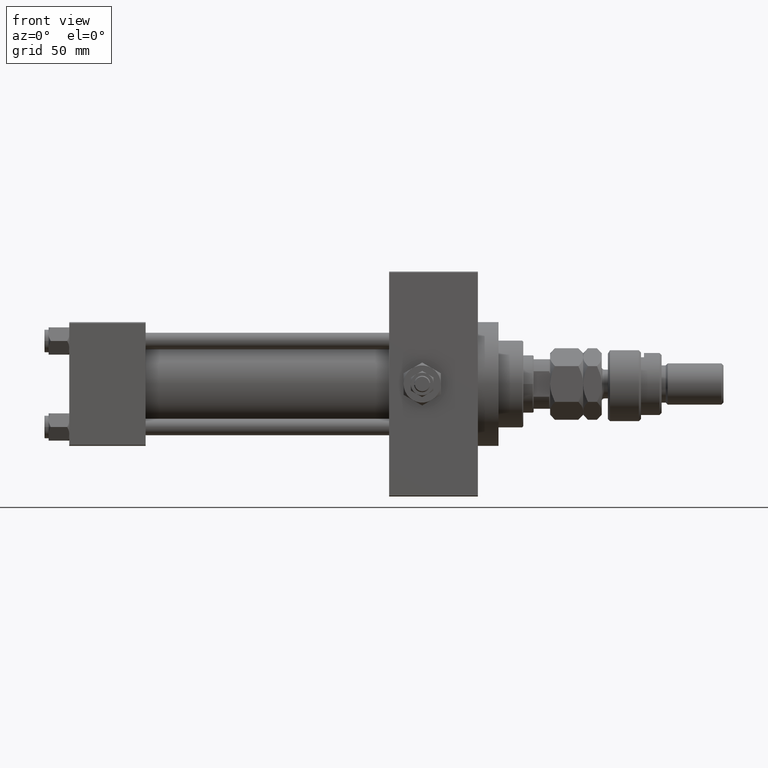
[diagram: clean part render]
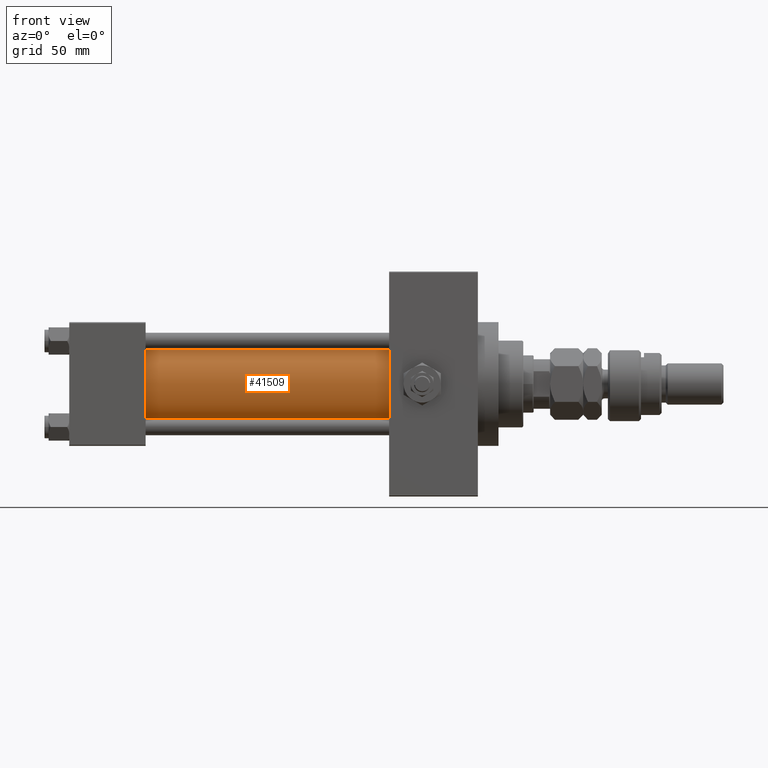
[diagram: same view with one face highlighted and labeled with its STEP entity id]
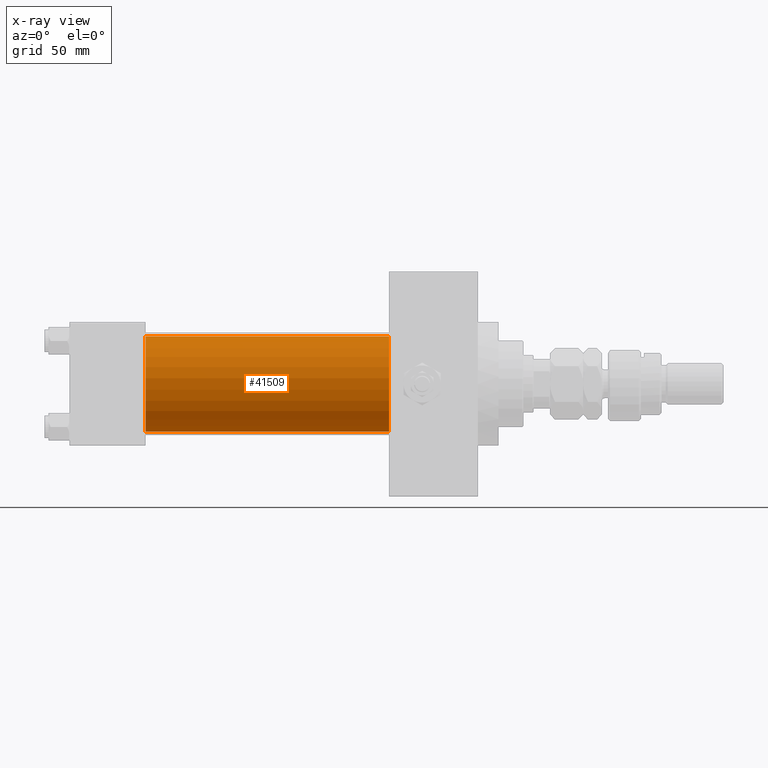
[diagram: x-ray of the same camera — body ghosted, the highlighted face saturated]
A machine part, front view. The second image highlights one B-rep face of the part: STEP entity #41509.
The next image is the same camera in x-ray: the body ghosted, the highlighted face saturated — about 0% of this face is hidden behind the body in this view.
In plain terms, the highlighted cylindrical surface (partial cylindrical patch) has radius 23 mm, axis along (-1, -0, -0).
Its self-contained STEP definition (entity closure, byte-faithful):
#98 = CARTESIAN_POINT ( 'NONE',  ( 155.0000000000000000, 2.146024240737016609E-16, -23.00000000000000000 ) ) ;
#887 = ORIENTED_EDGE ( 'NONE', *, *, #43279, .F. ) ;
#1517 = DIRECTION ( 'NONE',  ( -1.000000000000000000, -0.000000000000000000, -0.000000000000000000 ) ) ;
#2030 = CYLINDRICAL_SURFACE ( 'NONE', #33888, 23.00000000000000000 ) ;
#3054 = CARTESIAN_POINT ( 'NONE',  ( 155.0000000000000000, -2.602085213965210642E-15, 0.000000000000000000 ) ) ;
#3442 = CARTESIAN_POINT ( 'NONE',  ( 155.0000000000000000, -2.602085213965210642E-15, 0.000000000000000000 ) ) ;
#3690 = DIRECTION ( 'NONE',  ( 0.000000000000000000, 0.000000000000000000, -1.000000000000000000 ) ) ;
#5189 = VERTEX_POINT ( 'NONE', #98 ) ;
#6702 = ORIENTED_EDGE ( 'NONE', *, *, #36037, .F. ) ;
#15310 = LINE ( 'NONE', #46596, #28854 ) ;
#16015 = EDGE_LOOP ( 'NONE', ( #887, #6702, #18909, #29895 ) ) ;
#17928 = DIRECTION ( 'NONE',  ( -1.000000000000000000, -0.000000000000000000, -0.000000000000000000 ) ) ;
#18909 = ORIENTED_EDGE ( 'NONE', *, *, #20755, .T. ) ;
#20755 = EDGE_CURVE ( 'NONE', #38773, #51149, #32777, .T. ) ;
#23119 = DIRECTION ( 'NONE',  ( 0.000000000000000000, 0.000000000000000000, 1.000000000000000000 ) ) ;
#28854 = VECTOR ( 'NONE', #41213, 1000.000000000000000 ) ;
#29895 = ORIENTED_EDGE ( 'NONE', *, *, #32033, .T. ) ;
#32033 = EDGE_CURVE ( 'NONE', #51149, #45549, #47226, .T. ) ;
#32777 = LINE ( 'NONE', #48949, #37756 ) ;
#33888 = AXIS2_PLACEMENT_3D ( 'NONE', #3054, #17928, #23119 ) ;
#34586 = FACE_OUTER_BOUND ( 'NONE', #16015, .T. ) ;
#34659 = CARTESIAN_POINT ( 'NONE',  ( 37.00000000000000711, 2.146024240737016609E-16, -23.00000000000000000 ) ) ;
#35941 = DIRECTION ( 'NONE',  ( 0.000000000000000000, 0.000000000000000000, 1.000000000000000000 ) ) ;
#36037 = EDGE_CURVE ( 'NONE', #38773, #5189, #38677, .T. ) ;
#37756 = VECTOR ( 'NONE', #1517, 1000.000000000000000 ) ;
#38081 = CARTESIAN_POINT ( 'NONE',  ( 155.0000000000000000, -2.602085213965210642E-15, 23.00000000000000000 ) ) ;
#38677 = CIRCLE ( 'NONE', #47010, 23.00000000000000000 ) ;
#38773 = VERTEX_POINT ( 'NONE', #38081 ) ;
#41008 = CARTESIAN_POINT ( 'NONE',  ( 37.00000000000000711, -2.602085213965210642E-15, 23.00000000000000000 ) ) ;
#41213 = DIRECTION ( 'NONE',  ( -1.000000000000000000, -0.000000000000000000, -0.000000000000000000 ) ) ;
#41509 = ADVANCED_FACE ( 'NONE', ( #34586 ), #2030, .T. ) ;
#43279 = EDGE_CURVE ( 'NONE', #5189, #45549, #15310, .T. ) ;
#44013 = DIRECTION ( 'NONE',  ( 1.000000000000000000, -0.000000000000000000, 0.000000000000000000 ) ) ;
#44796 = CARTESIAN_POINT ( 'NONE',  ( 37.00000000000000711, -2.602085213965210642E-15, 0.000000000000000000 ) ) ;
#45549 = VERTEX_POINT ( 'NONE', #34659 ) ;
#46409 = AXIS2_PLACEMENT_3D ( 'NONE', #44796, #44013, #35941 ) ;
#46596 = CARTESIAN_POINT ( 'NONE',  ( 155.0000000000000000, 2.146024240737016609E-16, -23.00000000000000000 ) ) ;
#46964 = DIRECTION ( 'NONE',  ( 1.000000000000000000, 0.000000000000000000, 0.000000000000000000 ) ) ;
#47010 = AXIS2_PLACEMENT_3D ( 'NONE', #3442, #46964, #3690 ) ;
#47226 = CIRCLE ( 'NONE', #46409, 23.00000000000000000 ) ;
#48949 = CARTESIAN_POINT ( 'NONE',  ( 155.0000000000000000, -2.602085213965210642E-15, 23.00000000000000000 ) ) ;
#51149 = VERTEX_POINT ( 'NONE', #41008 ) ;